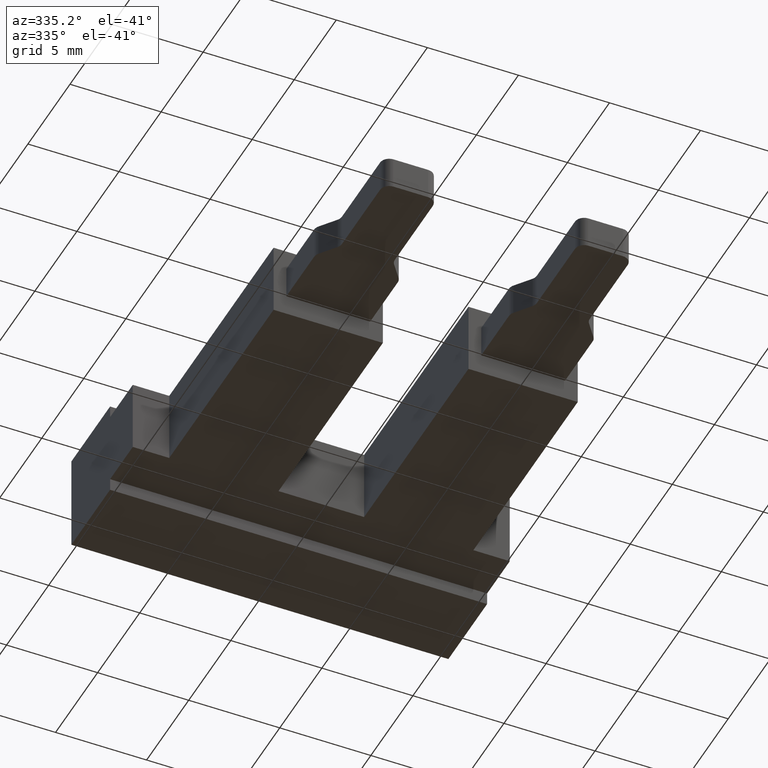
[diagram: clean part render]
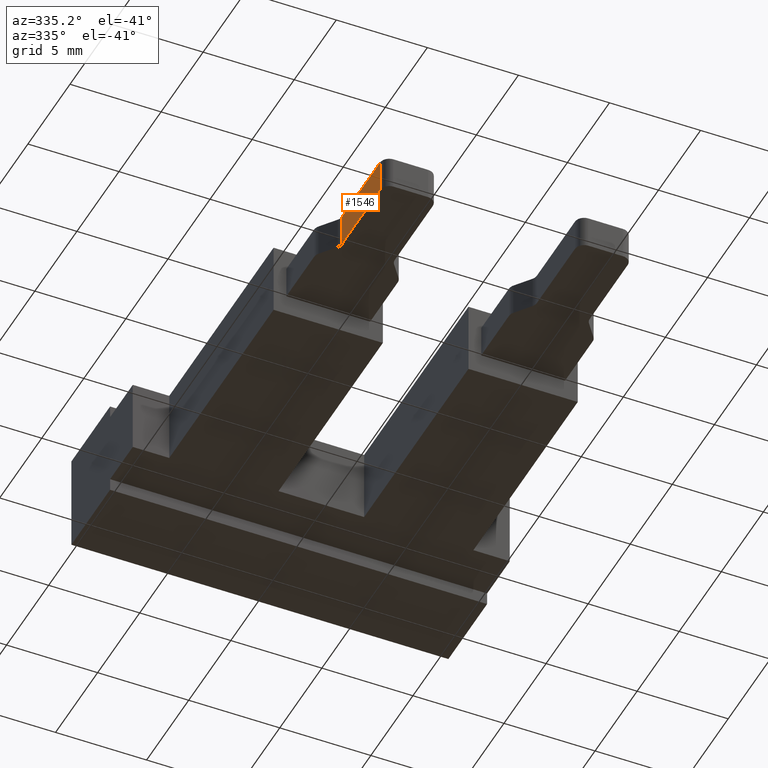
[diagram: same view with one face highlighted and labeled with its STEP entity id]
A machine part, auxiliary view. The second image highlights one B-rep face of the part: STEP entity #1546.
In plain terms, the highlighted planar face has unit normal (1, -0, 0).
Its self-contained STEP definition (entity closure, byte-faithful):
#6 = LINE ( 'NONE', #12, #1188 ) ;
#7 = DIRECTION ( 'NONE',  ( -0.0000000000000000000, 0.0000000000000000000, 1.000000000000000000 ) ) ;
#12 = CARTESIAN_POINT ( 'NONE',  ( 3.550000000000221900, -17.16666666666675000, 2.949999999999999700 ) ) ;
#57 = DIRECTION ( 'NONE',  ( 0.0000000000000000000, -0.0000000000000000000, -1.000000000000000000 ) ) ;
#58 = CARTESIAN_POINT ( 'NONE',  ( 3.549999999999999800, -21.69999999999999600, 2.949999999999999700 ) ) ;
#67 = LINE ( 'NONE', #58, #1239 ) ;
#375 = FACE_OUTER_BOUND ( 'NONE', #521, .T. ) ;
#397 = CARTESIAN_POINT ( 'NONE',  ( 3.549999999999999800, -21.69999999999999600, 2.949999999999999700 ) ) ;
#398 = DIRECTION ( 'NONE',  ( 1.000000000000000000, -4.898042755699460000E-014, 0.0000000000000000000 ) ) ;
#403 = PLANE ( 'NONE',  #1336 ) ;
#409 = DIRECTION ( 'NONE',  ( 4.898042755699460000E-014, 1.000000000000000000, 0.0000000000000000000 ) ) ;
#425 = VERTEX_POINT ( 'NONE', #857 ) ;
#464 = VERTEX_POINT ( 'NONE', #846 ) ;
#473 = VERTEX_POINT ( 'NONE', #879 ) ;
#506 = VERTEX_POINT ( 'NONE', #884 ) ;
#521 = EDGE_LOOP ( 'NONE', ( #627, #660, #644, #669 ) ) ;
#627 = ORIENTED_EDGE ( 'NONE', *, *, #1436, .F. ) ;
#644 = ORIENTED_EDGE ( 'NONE', *, *, #1449, .F. ) ;
#660 = ORIENTED_EDGE ( 'NONE', *, *, #1414, .T. ) ;
#669 = ORIENTED_EDGE ( 'NONE', *, *, #1426, .T. ) ;
#846 = CARTESIAN_POINT ( 'NONE',  ( 3.550000000000110800, -17.16666666666673900, 2.949999999999999700 ) ) ;
#857 = CARTESIAN_POINT ( 'NONE',  ( 3.549999999999999800, -21.69999999999999600, 2.949999999999999700 ) ) ;
#879 = CARTESIAN_POINT ( 'NONE',  ( 3.550000000000110800, -21.69999999999999600, 1.149999999999977500 ) ) ;
#884 = CARTESIAN_POINT ( 'NONE',  ( 3.550000000000221900, -17.16666666666673900, 1.149999999999978600 ) ) ;
#893 = LINE ( 'NONE', #946, #1190 ) ;
#935 = LINE ( 'NONE', #942, #1200 ) ;
#942 = CARTESIAN_POINT ( 'NONE',  ( 3.549999999999999800, -2.700000000000001100, 2.949999999999999700 ) ) ;
#943 = DIRECTION ( 'NONE',  ( 0.0000000000000000000, 1.000000000000000000, 0.0000000000000000000 ) ) ;
#946 = CARTESIAN_POINT ( 'NONE',  ( 3.550000000000221900, -2.700000000000001100, 1.149999999999977900 ) ) ;
#966 = DIRECTION ( 'NONE',  ( -0.0000000000000000000, -1.000000000000000000, 0.0000000000000000000 ) ) ;
#1188 = VECTOR ( 'NONE', #7, 1000.000000000000000 ) ;
#1190 = VECTOR ( 'NONE', #966, 1000.000000000000000 ) ;
#1200 = VECTOR ( 'NONE', #943, 1000.000000000000000 ) ;
#1239 = VECTOR ( 'NONE', #57, 1000.000000000000000 ) ;
#1336 = AXIS2_PLACEMENT_3D ( 'NONE', #397, #398, #409 ) ;
#1414 = EDGE_CURVE ( 'NONE', #506, #473, #893, .T. ) ;
#1426 = EDGE_CURVE ( 'NONE', #425, #464, #935, .T. ) ;
#1436 = EDGE_CURVE ( 'NONE', #506, #464, #6, .T. ) ;
#1449 = EDGE_CURVE ( 'NONE', #425, #473, #67, .T. ) ;
#1546 = ADVANCED_FACE ( 'NONE', ( #375 ), #403, .F. ) ;